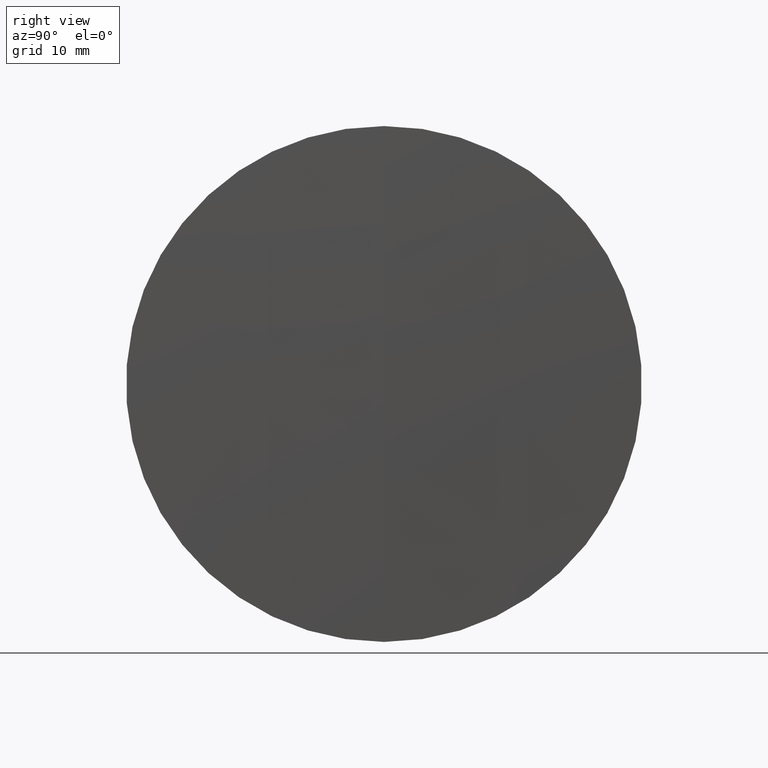
[diagram: clean part render]
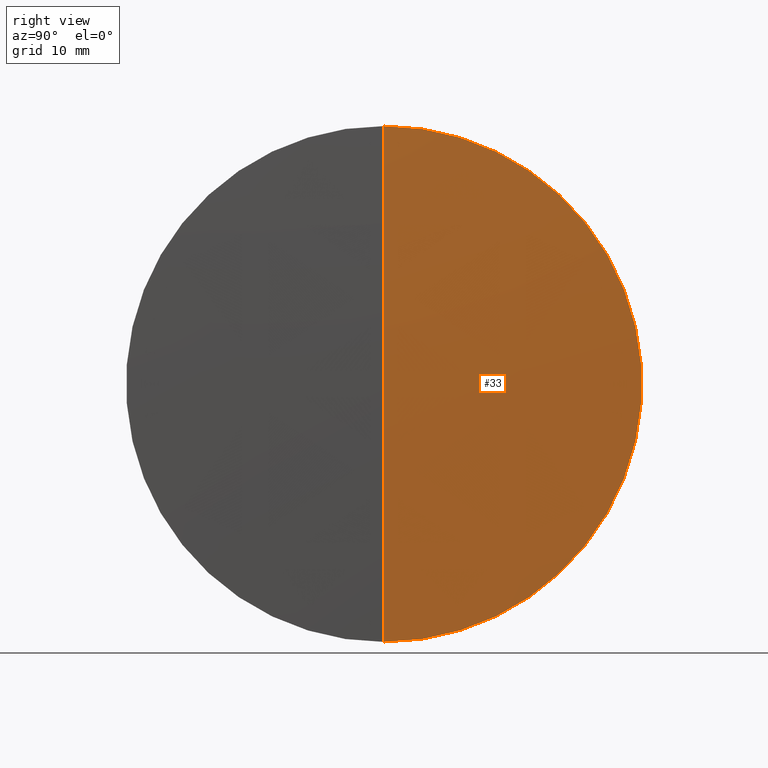
[diagram: same view with one face highlighted and labeled with its STEP entity id]
A machine part, right view. The second image highlights one B-rep face of the part: STEP entity #33.
In plain terms, the highlighted spherical surface has radius 840.697 mm.
Its self-contained STEP definition (entity closure, byte-faithful):
#22 = DIRECTION ( 'NONE',  ( 0.0000000000000000000, 0.0000000000000000000, 1.000000000000000000 ) ) ;
#29 = SPHERICAL_SURFACE ( 'NONE', #243, 840.6970000000000000 ) ;
#33 = ADVANCED_FACE ( 'NONE', ( #275 ), #29, .T. ) ;
#34 = EDGE_CURVE ( 'NONE', #109, #108, #173, .T. ) ;
#42 = EDGE_CURVE ( 'NONE', #109, #92, #91, .T. ) ;
#43 = CIRCLE ( 'NONE', #172, 24.99999999999932500 ) ;
#47 = ORIENTED_EDGE ( 'NONE', *, *, #42, .T. ) ;
#51 = CARTESIAN_POINT ( 'NONE',  ( 297.4081471606919500, 0.0000000000000000000, 5.147784450513912500E-014 ) ) ;
#63 = AXIS2_PLACEMENT_3D ( 'NONE', #277, #73, #232 ) ;
#73 = DIRECTION ( 'NONE',  ( 0.0000000000000000000, -1.000000000000000000, 0.0000000000000000000 ) ) ;
#89 = AXIS2_PLACEMENT_3D ( 'NONE', #256, #236, #182 ) ;
#91 = CIRCLE ( 'NONE', #89, 840.6970000000000000 ) ;
#92 = VERTEX_POINT ( 'NONE', #245 ) ;
#108 = VERTEX_POINT ( 'NONE', #305 ) ;
#109 = VERTEX_POINT ( 'NONE', #51 ) ;
#119 = ORIENTED_EDGE ( 'NONE', *, *, #144, .F. ) ;
#123 = DIRECTION ( 'NONE',  ( 0.0000000000000000000, 1.000000000000000000, 0.0000000000000000000 ) ) ;
#131 = DIRECTION ( 'NONE',  ( 0.0000000000000000000, 0.0000000000000000000, 1.000000000000000000 ) ) ;
#144 = EDGE_CURVE ( 'NONE', #108, #92, #43, .T. ) ;
#172 = AXIS2_PLACEMENT_3D ( 'NONE', #294, #296, #131 ) ;
#173 = CIRCLE ( 'NONE', #63, 840.6970000000000000 ) ;
#182 = DIRECTION ( 'NONE',  ( 0.0000000000000000000, -1.224646799147353200E-016, 1.000000000000000000 ) ) ;
#232 = DIRECTION ( 'NONE',  ( 0.0000000000000000000, 0.0000000000000000000, -1.000000000000000000 ) ) ;
#236 = DIRECTION ( 'NONE',  ( -0.0000000000000000000, 1.000000000000000000, 1.224646799147353200E-016 ) ) ;
#243 = AXIS2_PLACEMENT_3D ( 'NONE', #283, #123, #22 ) ;
#245 = CARTESIAN_POINT ( 'NONE',  ( 297.0363495728295200, 3.061616997868316400E-015, -24.99999999999932500 ) ) ;
#256 = CARTESIAN_POINT ( 'NONE',  ( -543.2888528393081100, 0.0000000000000000000, 0.0000000000000000000 ) ) ;
#275 = FACE_OUTER_BOUND ( 'NONE', #330, .T. ) ;
#277 = CARTESIAN_POINT ( 'NONE',  ( -543.2888528393081100, 0.0000000000000000000, 0.0000000000000000000 ) ) ;
#283 = CARTESIAN_POINT ( 'NONE',  ( -543.2888528393081100, 0.0000000000000000000, 0.0000000000000000000 ) ) ;
#294 = CARTESIAN_POINT ( 'NONE',  ( 297.0363495728295200, 0.0000000000000000000, 0.0000000000000000000 ) ) ;
#296 = DIRECTION ( 'NONE',  ( -1.000000000000000000, -0.0000000000000000000, -0.0000000000000000000 ) ) ;
#305 = CARTESIAN_POINT ( 'NONE',  ( 297.0363495728295200, 0.0000000000000000000, 24.99999999999932500 ) ) ;
#329 = ORIENTED_EDGE ( 'NONE', *, *, #34, .F. ) ;
#330 = EDGE_LOOP ( 'NONE', ( #329, #47, #119 ) ) ;